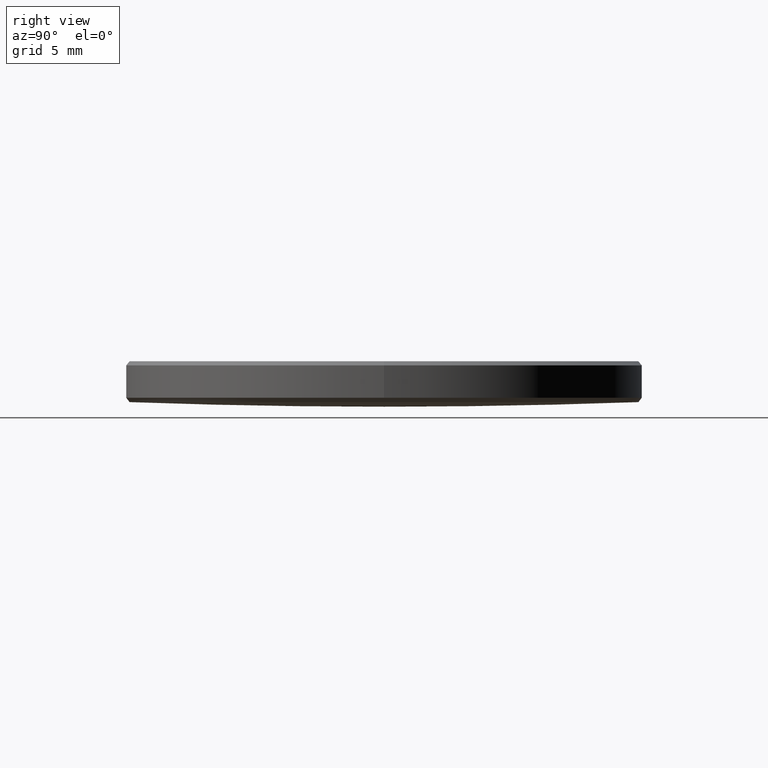
[diagram: clean part render]
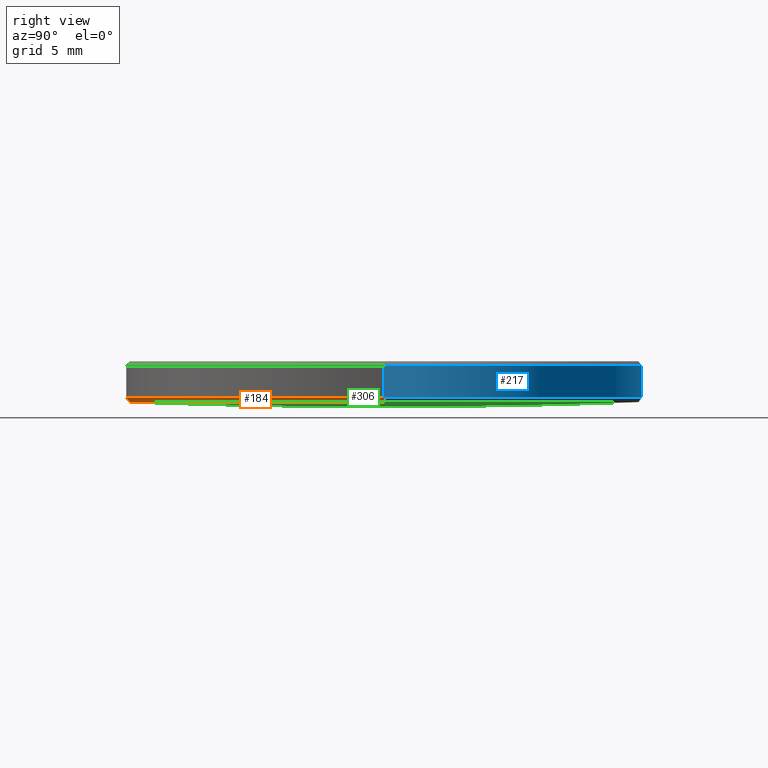
[diagram: same view with three faces highlighted in distinct colors, each labeled with its STEP entity id]
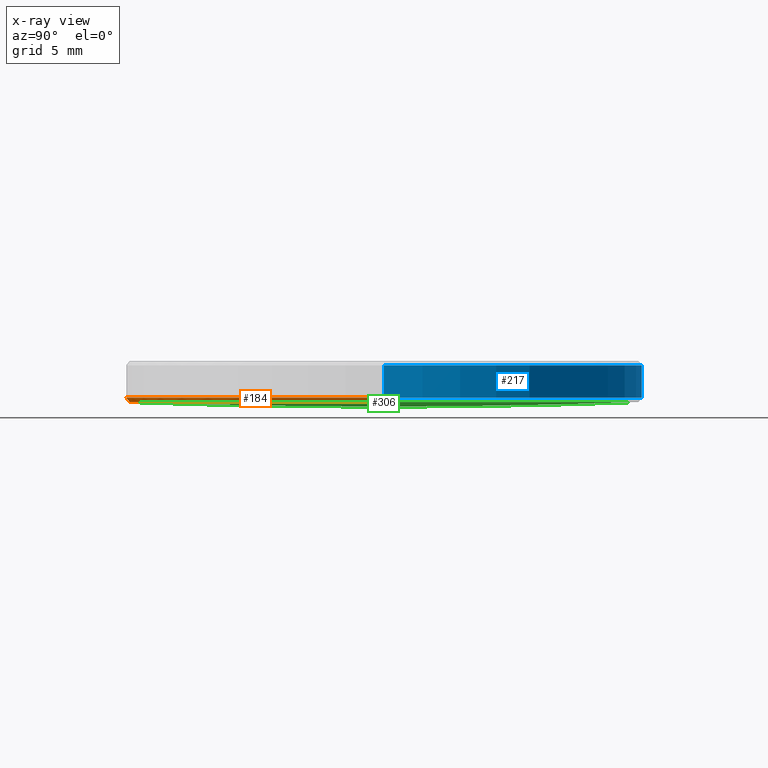
[diagram: x-ray of the same camera — body ghosted, the three highlighted faces saturated]
A machine part, right view with three faces highlighted in distinct colors.
The next image is the same camera in x-ray (body ghosted, the three faces saturated) — at least one of them is partly hidden behind the body in this view.
Their STEP definitions:

[orange] entity #184 — the highlighted conical surface has half-angle 42.909 deg.
#5 = VERTEX_POINT ( 'NONE', #166 ) ;
#13 = CIRCLE ( 'NONE', #219, 12.50018853125826723 ) ;
#14 = CIRCLE ( 'NONE', #211, 12.69999999999999929 ) ;
#16 = CARTESIAN_POINT ( 'NONE',  ( 0.000000000000000000, 0.000000000000000000, 4.207718915923863712 ) ) ;
#28 = ORIENTED_EDGE ( 'NONE', *, *, #134, .T. ) ;
#31 = ORIENTED_EDGE ( 'NONE', *, *, #136, .F. ) ;
#35 = DIRECTION ( 'NONE',  ( 0.6808304174335974013, 0.000000000000000000, 0.7324410847960356463 ) ) ;
#61 = VECTOR ( 'NONE', #295, 1000.000000000000000 ) ;
#69 = DIRECTION ( 'NONE',  ( -1.000000000000000000, 0.000000000000000000, 0.000000000000000000 ) ) ;
#85 = CARTESIAN_POINT ( 'NONE',  ( 12.69999999999999929, 0.000000000000000000, 4.207718915923863712 ) ) ;
#102 = VERTEX_POINT ( 'NONE', #265 ) ;
#131 = EDGE_CURVE ( 'NONE', #308, #102, #13, .T. ) ;
#134 = EDGE_CURVE ( 'NONE', #230, #260, #314, .T. ) ;
#136 = EDGE_CURVE ( 'NONE', #230, #308, #258, .T. ) ;
#137 = AXIS2_PLACEMENT_3D ( 'NONE', #140, #215, #290 ) ;
#139 = DIRECTION ( 'NONE',  ( 0.000000000000000000, 0.000000000000000000, -1.000000000000000000 ) ) ;
#140 = CARTESIAN_POINT ( 'NONE',  ( 0.000000000000000000, 0.000000000000000000, 3.992760645593507185 ) ) ;
#142 = CONICAL_SURFACE ( 'NONE', #330, 12.69999999999999929, 0.7488958049719834920 ) ;
#147 = DIRECTION ( 'NONE',  ( 1.000000000000000000, 0.000000000000000000, 0.000000000000000000 ) ) ;
#166 = CARTESIAN_POINT ( 'NONE',  ( -12.69999999999999929, 0.000000000000000000, 4.207718915923863712 ) ) ;
#175 = CARTESIAN_POINT ( 'NONE',  ( -12.69999999999999929, 1.555301434917138038E-15, 4.207718915923863712 ) ) ;
#179 = CARTESIAN_POINT ( 'NONE',  ( 0.000000000000000000, 0.000000000000000000, 4.207718915923863712 ) ) ;
#180 = EDGE_LOOP ( 'NONE', ( #212, #207, #31, #28, #285 ) ) ;
#184 = ADVANCED_FACE ( 'NONE', ( #323 ), #142, .T. ) ;
#196 = EDGE_CURVE ( 'NONE', #102, #5, #327, .T. ) ;
#202 = VECTOR ( 'NONE', #35, 1000.000000000000000 ) ;
#203 = DIRECTION ( 'NONE',  ( -0.000000000000000000, -0.000000000000000000, 1.000000000000000000 ) ) ;
#207 = ORIENTED_EDGE ( 'NONE', *, *, #131, .F. ) ;
#211 = AXIS2_PLACEMENT_3D ( 'NONE', #179, #203, #69 ) ;
#212 = ORIENTED_EDGE ( 'NONE', *, *, #196, .F. ) ;
#214 = CARTESIAN_POINT ( 'NONE',  ( 0.000000000000000000, 0.000000000000000000, 3.992760645593507185 ) ) ;
#215 = DIRECTION ( 'NONE',  ( 0.000000000000000000, 0.000000000000000000, -1.000000000000000000 ) ) ;
#218 = DIRECTION ( 'NONE',  ( -0.000000000000000000, -0.000000000000000000, 1.000000000000000000 ) ) ;
#219 = AXIS2_PLACEMENT_3D ( 'NONE', #214, #139, #264 ) ;
#223 = EDGE_CURVE ( 'NONE', #5, #260, #14, .T. ) ;
#230 = VERTEX_POINT ( 'NONE', #297 ) ;
#258 = CIRCLE ( 'NONE', #137, 12.50018853125826723 ) ;
#260 = VERTEX_POINT ( 'NONE', #272 ) ;
#264 = DIRECTION ( 'NONE',  ( 1.000000000000000000, 0.000000000000000000, 0.000000000000000000 ) ) ;
#265 = CARTESIAN_POINT ( 'NONE',  ( -12.50018853125826723, 1.543066511135763359E-15, 3.992760645593507185 ) ) ;
#272 = CARTESIAN_POINT ( 'NONE',  ( 12.69999999999999929, 1.555301434917138433E-15, 4.207718915923863712 ) ) ;
#274 = CARTESIAN_POINT ( 'NONE',  ( -1.530831587354516673E-15, -12.50018853125930818, 3.992760645593507185 ) ) ;
#285 = ORIENTED_EDGE ( 'NONE', *, *, #223, .F. ) ;
#290 = DIRECTION ( 'NONE',  ( 1.000000000000000000, 0.000000000000000000, 0.000000000000000000 ) ) ;
#295 = DIRECTION ( 'NONE',  ( -0.6808304174335974013, 8.337767914722111938E-17, 0.7324410847960356463 ) ) ;
#297 = CARTESIAN_POINT ( 'NONE',  ( 12.50018853125826723, 0.000000000000000000, 3.992760645593507185 ) ) ;
#308 = VERTEX_POINT ( 'NONE', #274 ) ;
#314 = LINE ( 'NONE', #85, #202 ) ;
#323 = FACE_OUTER_BOUND ( 'NONE', #180, .T. ) ;
#327 = LINE ( 'NONE', #175, #61 ) ;
#330 = AXIS2_PLACEMENT_3D ( 'NONE', #16, #218, #147 ) ;

[blue] entity #217 — the highlighted cylindrical surface (partial cylindrical patch) has radius 12.7 mm, axis along (-0, -0, -1).
#5 = VERTEX_POINT ( 'NONE', #166 ) ;
#19 = CARTESIAN_POINT ( 'NONE',  ( 0.000000000000000000, 0.000000000000000000, 10.00000000000000000 ) ) ;
#30 = ORIENTED_EDGE ( 'NONE', *, *, #257, .F. ) ;
#40 = DIRECTION ( 'NONE',  ( -1.000000000000000000, 0.000000000000000000, 0.000000000000000000 ) ) ;
#42 = CARTESIAN_POINT ( 'NONE',  ( 0.000000000000000000, 0.000000000000000000, 4.207718915923863712 ) ) ;
#46 = LINE ( 'NONE', #91, #56 ) ;
#49 = AXIS2_PLACEMENT_3D ( 'NONE', #19, #153, #40 ) ;
#54 = CARTESIAN_POINT ( 'NONE',  ( -12.69999999999999929, 0.000000000000000000, 5.800000000000471445 ) ) ;
#56 = VECTOR ( 'NONE', #278, 1000.000000000000000 ) ;
#70 = VERTEX_POINT ( 'NONE', #165 ) ;
#73 = ORIENTED_EDGE ( 'NONE', *, *, #328, .T. ) ;
#89 = DIRECTION ( 'NONE',  ( 1.000000000000000000, 0.000000000000000000, 0.000000000000000000 ) ) ;
#91 = CARTESIAN_POINT ( 'NONE',  ( 12.69999999999999929, 1.555301434917138433E-15, 10.00000000000000000 ) ) ;
#94 = DIRECTION ( 'NONE',  ( -1.000000000000000000, 0.000000000000000000, 0.000000000000000000 ) ) ;
#101 = VERTEX_POINT ( 'NONE', #54 ) ;
#103 = CIRCLE ( 'NONE', #128, 12.69999999999999929 ) ;
#111 = EDGE_CURVE ( 'NONE', #101, #70, #293, .T. ) ;
#116 = VECTOR ( 'NONE', #155, 1000.000000000000000 ) ;
#117 = CARTESIAN_POINT ( 'NONE',  ( 0.000000000000000000, 0.000000000000000000, 5.800000000000471445 ) ) ;
#128 = AXIS2_PLACEMENT_3D ( 'NONE', #42, #324, #94 ) ;
#129 = ORIENTED_EDGE ( 'NONE', *, *, #111, .T. ) ;
#150 = LINE ( 'NONE', #303, #116 ) ;
#153 = DIRECTION ( 'NONE',  ( -0.000000000000000000, -0.000000000000000000, -1.000000000000000000 ) ) ;
#155 = DIRECTION ( 'NONE',  ( -0.000000000000000000, -0.000000000000000000, -1.000000000000000000 ) ) ;
#159 = AXIS2_PLACEMENT_3D ( 'NONE', #117, #319, #89 ) ;
#165 = CARTESIAN_POINT ( 'NONE',  ( 12.69999999999999929, 1.555301434917138433E-15, 5.800000000000471445 ) ) ;
#166 = CARTESIAN_POINT ( 'NONE',  ( -12.69999999999999929, 0.000000000000000000, 4.207718915923863712 ) ) ;
#177 = FACE_OUTER_BOUND ( 'NONE', #262, .T. ) ;
#217 = ADVANCED_FACE ( 'NONE', ( #177 ), #301, .T. ) ;
#240 = EDGE_CURVE ( 'NONE', #70, #260, #46, .T. ) ;
#257 = EDGE_CURVE ( 'NONE', #101, #5, #150, .T. ) ;
#260 = VERTEX_POINT ( 'NONE', #272 ) ;
#262 = EDGE_LOOP ( 'NONE', ( #129, #282, #73, #30 ) ) ;
#272 = CARTESIAN_POINT ( 'NONE',  ( 12.69999999999999929, 1.555301434917138433E-15, 4.207718915923863712 ) ) ;
#278 = DIRECTION ( 'NONE',  ( -0.000000000000000000, -0.000000000000000000, -1.000000000000000000 ) ) ;
#282 = ORIENTED_EDGE ( 'NONE', *, *, #240, .T. ) ;
#293 = CIRCLE ( 'NONE', #159, 12.69999999999999929 ) ;
#301 = CYLINDRICAL_SURFACE ( 'NONE', #49, 12.69999999999999929 ) ;
#303 = CARTESIAN_POINT ( 'NONE',  ( -12.69999999999999929, 0.000000000000000000, 10.00000000000000000 ) ) ;
#319 = DIRECTION ( 'NONE',  ( 0.000000000000000000, 0.000000000000000000, -1.000000000000000000 ) ) ;
#324 = DIRECTION ( 'NONE',  ( -0.000000000000000000, -0.000000000000000000, 1.000000000000000000 ) ) ;
#328 = EDGE_CURVE ( 'NONE', #260, #5, #103, .T. ) ;

[green] entity #306 — the highlighted spherical surface has radius 348 mm.
#8 = DIRECTION ( 'NONE',  ( 0.000000000000000000, 0.000000000000000000, -1.000000000000000000 ) ) ;
#24 = DIRECTION ( 'NONE',  ( -1.000000000000000000, 1.224646799147353207E-16, 0.000000000000000000 ) ) ;
#37 = DIRECTION ( 'NONE',  ( 1.000000000000000000, 0.000000000000000000, 0.000000000000000000 ) ) ;
#47 = ORIENTED_EDGE ( 'NONE', *, *, #277, .F. ) ;
#48 = AXIS2_PLACEMENT_3D ( 'NONE', #57, #8, #37 ) ;
#57 = CARTESIAN_POINT ( 'NONE',  ( 0.000000000000000000, 0.000000000000000000, 3.992760645593507185 ) ) ;
#63 = CARTESIAN_POINT ( 'NONE',  ( 0.000000000000000000, 0.000000000000000000, 351.7681842837264981 ) ) ;
#64 = SPHERICAL_SURFACE ( 'NONE', #236, 347.9999999999999432 ) ;
#65 = EDGE_CURVE ( 'NONE', #325, #230, #108, .T. ) ;
#68 = AXIS2_PLACEMENT_3D ( 'NONE', #63, #24, #298 ) ;
#93 = EDGE_CURVE ( 'NONE', #124, #325, #114, .T. ) ;
#108 = CIRCLE ( 'NONE', #48, 12.50018853125826723 ) ;
#110 = DIRECTION ( 'NONE',  ( 1.000000000000000000, -0.000000000000000000, 0.000000000000000000 ) ) ;
#114 = CIRCLE ( 'NONE', #286, 347.9999999999999432 ) ;
#124 = VERTEX_POINT ( 'NONE', #163 ) ;
#136 = EDGE_CURVE ( 'NONE', #230, #308, #258, .T. ) ;
#137 = AXIS2_PLACEMENT_3D ( 'NONE', #140, #215, #290 ) ;
#140 = CARTESIAN_POINT ( 'NONE',  ( 0.000000000000000000, 0.000000000000000000, 3.992760645593507185 ) ) ;
#163 = CARTESIAN_POINT ( 'NONE',  ( 0.000000000000000000, 2.130885430516394102E-14, 3.768184283726605521 ) ) ;
#181 = CARTESIAN_POINT ( 'NONE',  ( 0.000000000000000000, 0.000000000000000000, 351.7681842837264981 ) ) ;
#182 = ORIENTED_EDGE ( 'NONE', *, *, #136, .T. ) ;
#188 = CARTESIAN_POINT ( 'NONE',  ( 0.000000000000000000, 0.000000000000000000, 351.7681842837264981 ) ) ;
#201 = EDGE_LOOP ( 'NONE', ( #47, #253, #204, #182 ) ) ;
#204 = ORIENTED_EDGE ( 'NONE', *, *, #65, .T. ) ;
#215 = DIRECTION ( 'NONE',  ( 0.000000000000000000, 0.000000000000000000, -1.000000000000000000 ) ) ;
#222 = DIRECTION ( 'NONE',  ( 0.000000000000000000, 1.000000000000000000, 0.000000000000000000 ) ) ;
#224 = FACE_OUTER_BOUND ( 'NONE', #201, .T. ) ;
#230 = VERTEX_POINT ( 'NONE', #297 ) ;
#236 = AXIS2_PLACEMENT_3D ( 'NONE', #181, #331, #222 ) ;
#253 = ORIENTED_EDGE ( 'NONE', *, *, #93, .T. ) ;
#258 = CIRCLE ( 'NONE', #137, 12.50018853125826723 ) ;
#274 = CARTESIAN_POINT ( 'NONE',  ( -1.530831587354516673E-15, -12.50018853125930818, 3.992760645593507185 ) ) ;
#277 = EDGE_CURVE ( 'NONE', #124, #308, #317, .T. ) ;
#286 = AXIS2_PLACEMENT_3D ( 'NONE', #188, #110, #312 ) ;
#290 = DIRECTION ( 'NONE',  ( 1.000000000000000000, 0.000000000000000000, 0.000000000000000000 ) ) ;
#297 = CARTESIAN_POINT ( 'NONE',  ( 12.50018853125826723, 0.000000000000000000, 3.992760645593507185 ) ) ;
#298 = DIRECTION ( 'NONE',  ( -1.224646799147353207E-16, -1.000000000000000000, 0.000000000000000000 ) ) ;
#306 = ADVANCED_FACE ( 'NONE', ( #224 ), #64, .T. ) ;
#308 = VERTEX_POINT ( 'NONE', #274 ) ;
#312 = DIRECTION ( 'NONE',  ( 0.000000000000000000, 0.000000000000000000, -1.000000000000000000 ) ) ;
#317 = CIRCLE ( 'NONE', #68, 347.9999999999999432 ) ;
#322 = CARTESIAN_POINT ( 'NONE',  ( 0.000000000000000000, 12.50018853125930818, 3.992760645593507185 ) ) ;
#325 = VERTEX_POINT ( 'NONE', #322 ) ;
#331 = DIRECTION ( 'NONE',  ( -1.000000000000000000, 0.000000000000000000, 0.000000000000000000 ) ) ;